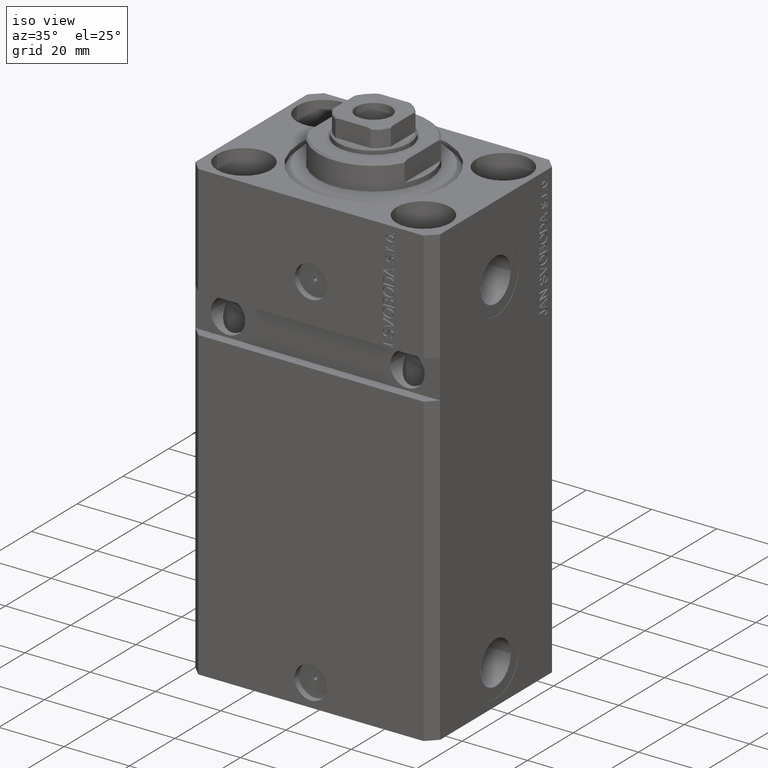
[diagram: clean part render]
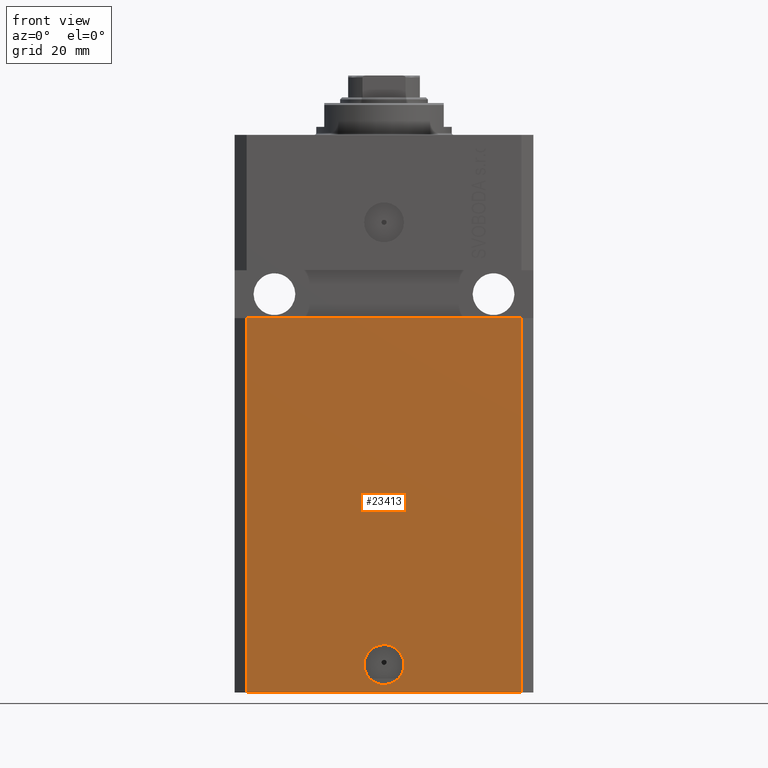
[diagram: tour spotlight — one face highlighted and labeled with its STEP entity id]
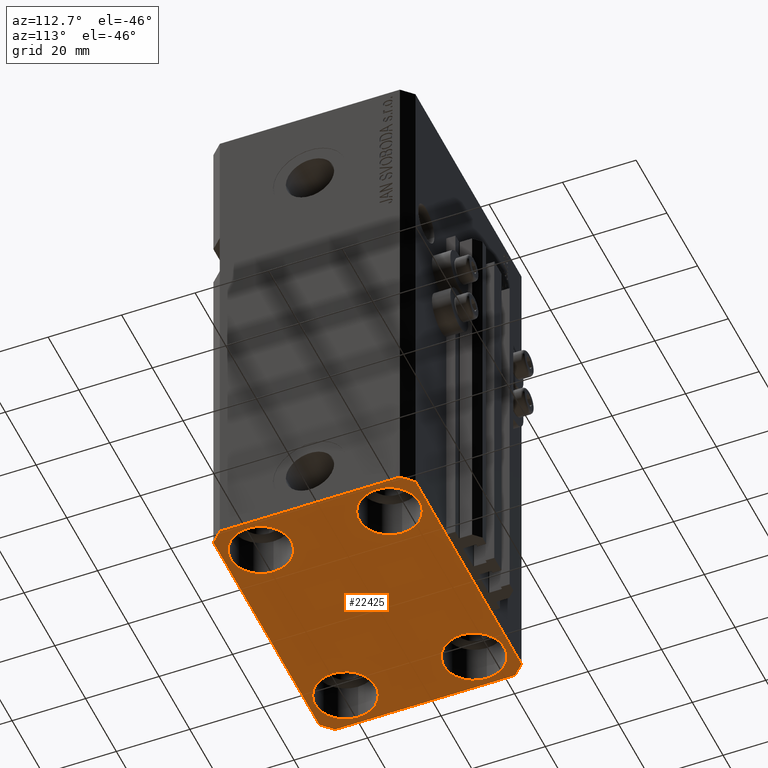
[diagram: tour spotlight — one face highlighted and labeled with its STEP entity id]
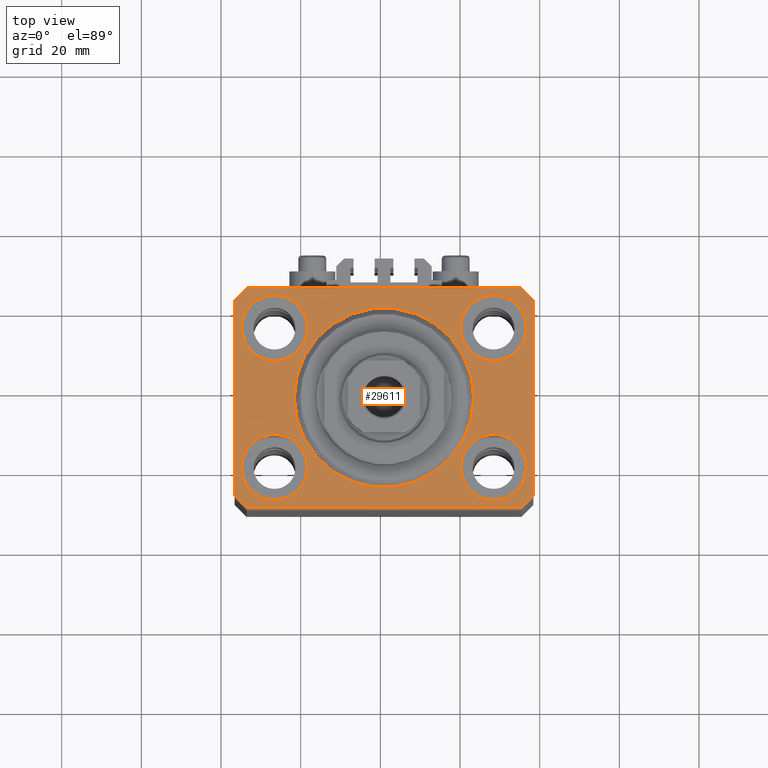
[diagram: tour spotlight — one face highlighted and labeled with its STEP entity id]
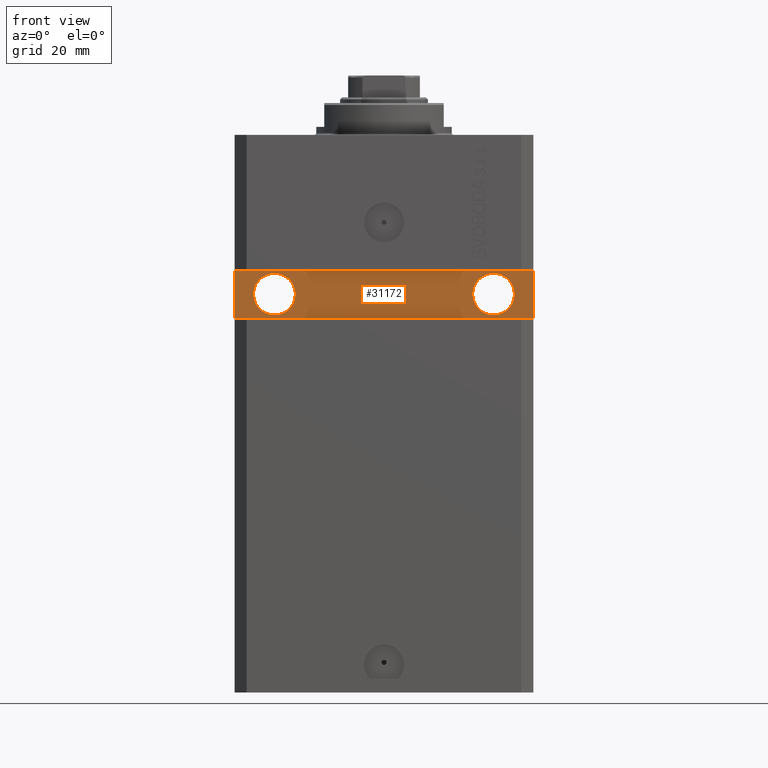
[diagram: tour spotlight — one face highlighted and labeled with its STEP entity id]
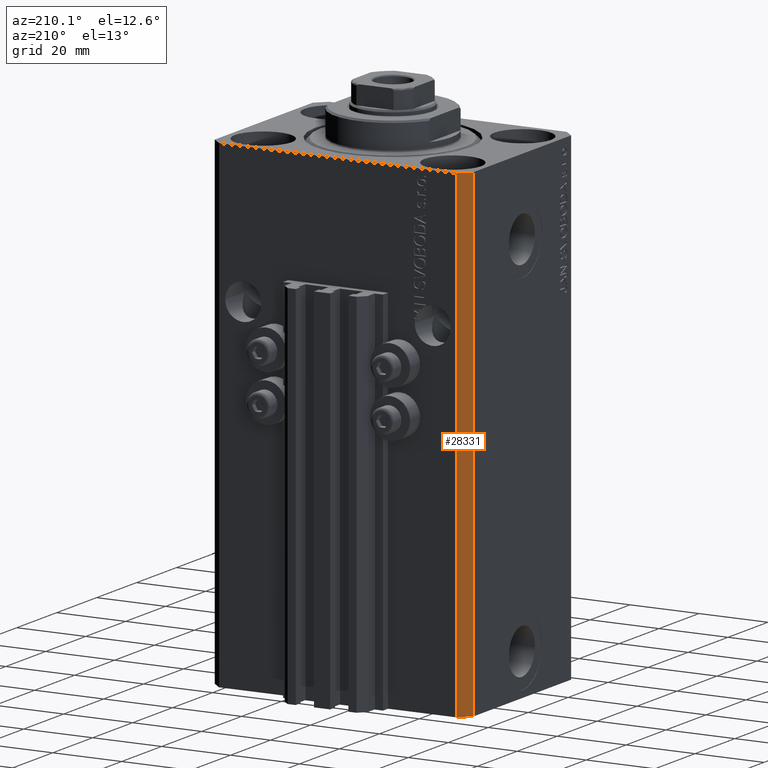
[diagram: tour spotlight — one face highlighted and labeled with its STEP entity id]
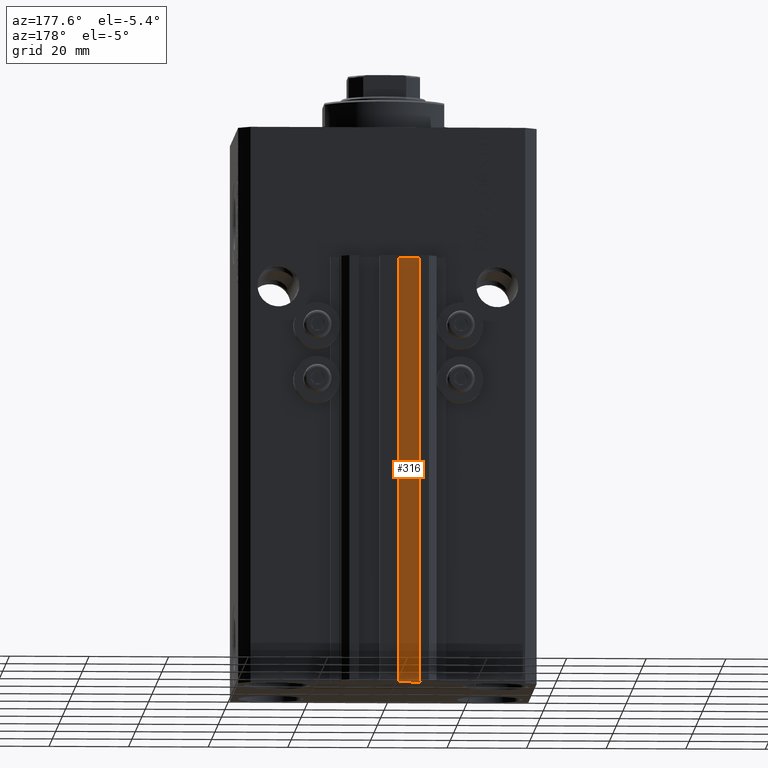
[diagram: tour spotlight — one face highlighted and labeled with its STEP entity id]
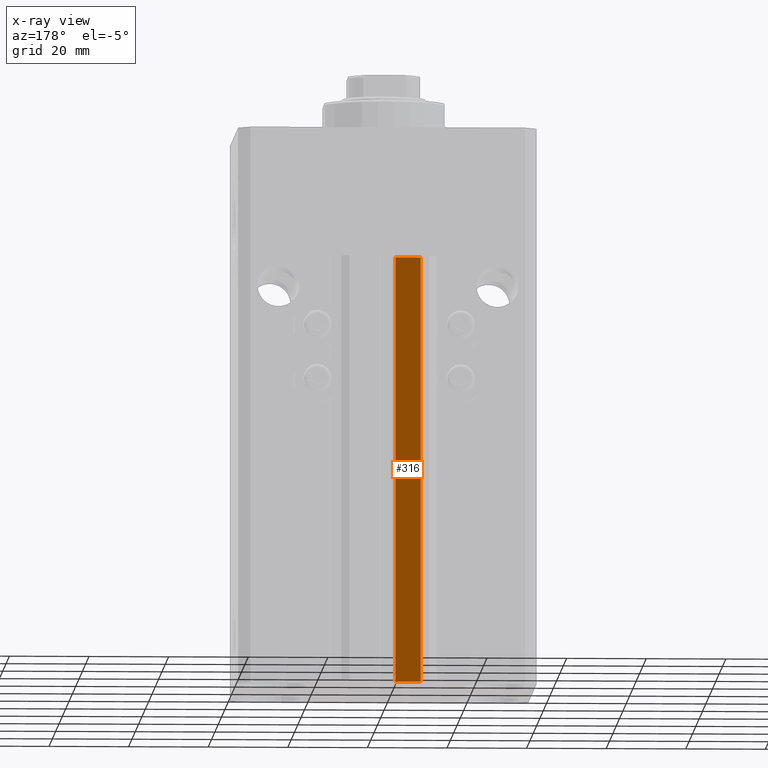
[diagram: x-ray of the same camera — body ghosted, this tour face saturated]
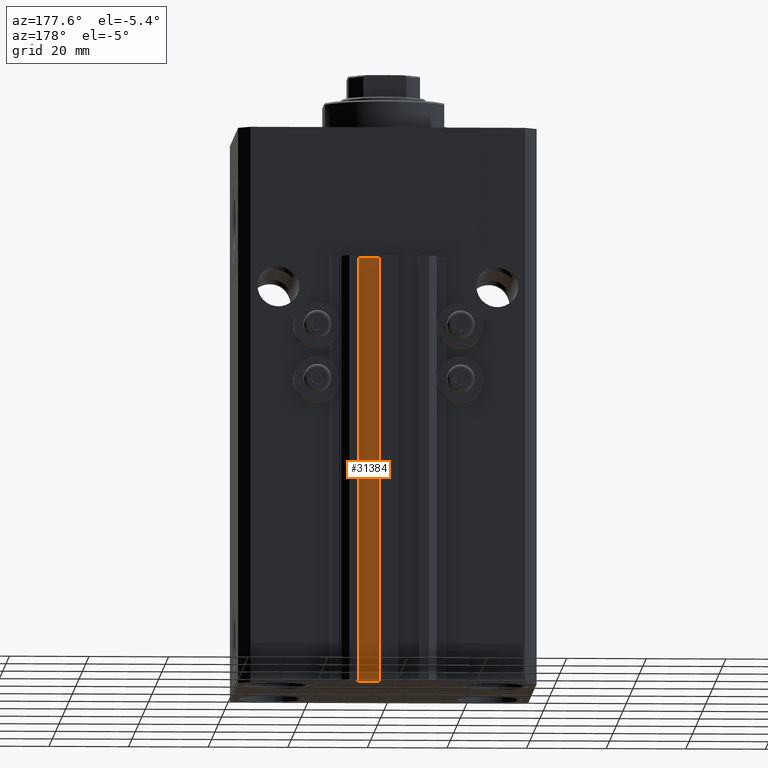
[diagram: tour spotlight — one face highlighted and labeled with its STEP entity id]
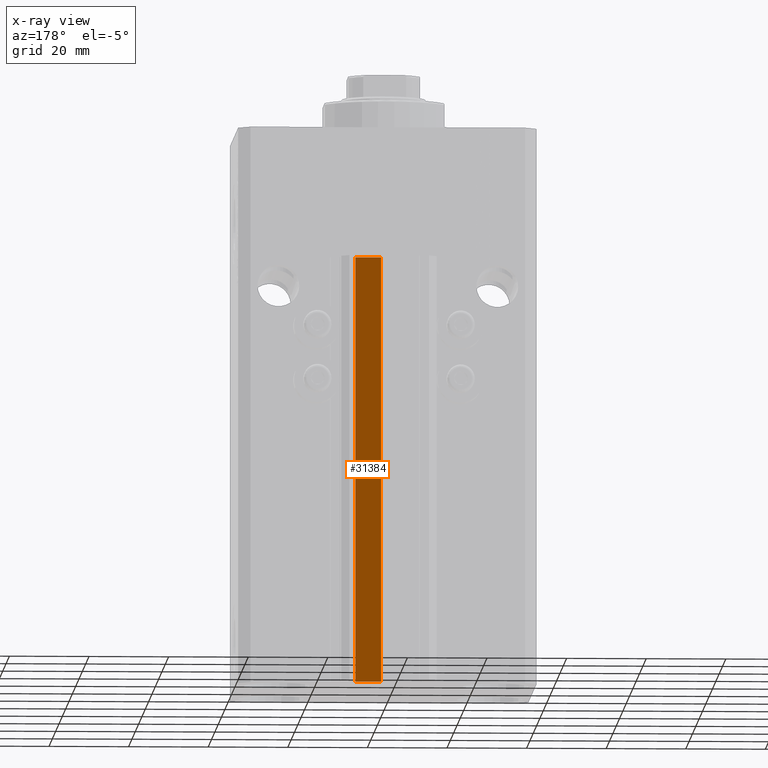
[diagram: x-ray of the same camera — body ghosted, this tour face saturated]
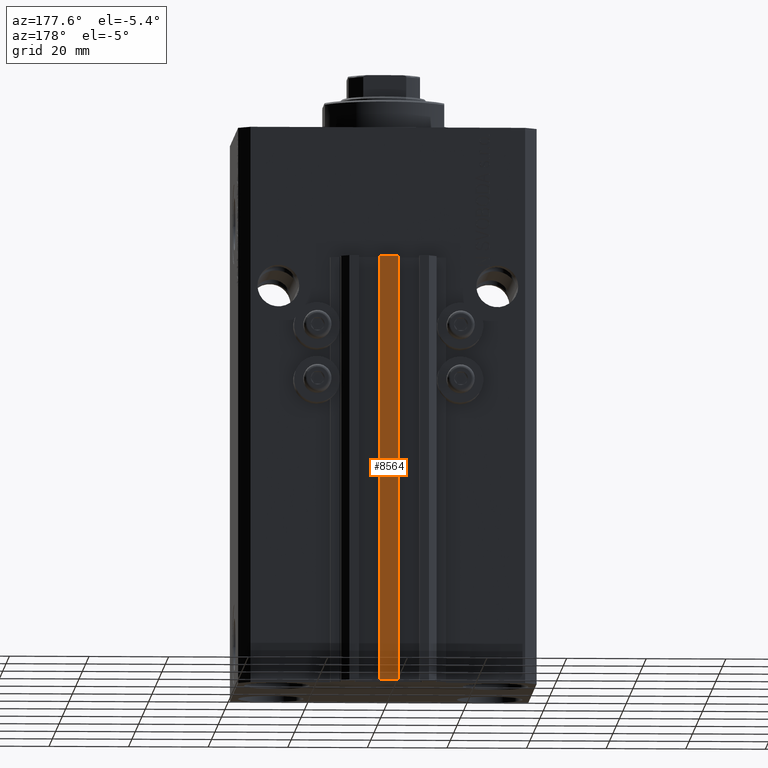
[diagram: tour spotlight — one face highlighted and labeled with its STEP entity id]
A machine part: a face-by-face anatomy tour. The part has 1080 B-rep faces; the first image is the clean iso view, then the 8 largest visible faces are spotlighted one at a time (largest first), each with its STEP entity span.

Face 1 — front view, entity #23413. In plain terms, the highlighted planar face has unit normal (0, -1, 0).
Definition (entity closure, byte-faithful):
#1524 = AXIS2_PLACEMENT_3D ( 'NONE', #9958, #24585, #38440 ) ;
#2670 = DIRECTION ( 'NONE',  ( 1.176083712526788232E-16, -1.000000000000000000, 0.000000000000000000 ) ) ;
#2763 = AXIS2_PLACEMENT_3D ( 'NONE', #6476, #2670, #25187 ) ;
#4005 = CARTESIAN_POINT ( 'NONE',  ( 34.49999999999999289, -27.49999999999999645, -140.0000000000000000 ) ) ;
#6476 = CARTESIAN_POINT ( 'NONE',  ( 0.000000000000000000, -27.49999999999999645, -133.0000000000000000 ) ) ;
#6776 = DIRECTION ( 'NONE',  ( 1.000000000000000000, 0.000000000000000000, 0.000000000000000000 ) ) ;
#6844 = EDGE_CURVE ( 'NONE', #19736, #15123, #44581, .T. ) ;
#8182 = CARTESIAN_POINT ( 'NONE',  ( 34.49999999999999289, -27.49999999999999645, -140.0000000000000000 ) ) ;
#9491 = CARTESIAN_POINT ( 'NONE',  ( -34.49999999999998579, -27.49999999999999645, -140.0000000000000000 ) ) ;
#9958 = CARTESIAN_POINT ( 'NONE',  ( 0.000000000000000000, -27.49999999999999645, -133.0000000000000000 ) ) ;
#11011 = VERTEX_POINT ( 'NONE', #31215 ) ;
#11185 = AXIS2_PLACEMENT_3D ( 'NONE', #16041, #27293, #24184 ) ;
#12691 = FACE_OUTER_BOUND ( 'NONE', #22361, .T. ) ;
#12722 = LINE ( 'NONE', #37605, #23693 ) ;
#13124 = EDGE_CURVE ( 'NONE', #36436, #19736, #28599, .T. ) ;
#13611 = VECTOR ( 'NONE', #25089, 1000.000000000000000 ) ;
#15123 = VERTEX_POINT ( 'NONE', #23352 ) ;
#16041 = CARTESIAN_POINT ( 'NONE',  ( -34.49999999999998579, -27.49999999999999645, -140.0000000000000000 ) ) ;
#16715 = ORIENTED_EDGE ( 'NONE', *, *, #6844, .T. ) ;
#17134 = VECTOR ( 'NONE', #33554, 1000.000000000000000 ) ;
#17197 = VECTOR ( 'NONE', #6776, 1000.000000000000000 ) ;
#19736 = VERTEX_POINT ( 'NONE', #4005 ) ;
#22361 = EDGE_LOOP ( 'NONE', ( #33493, #40130, #36865, #16715 ) ) ;
#23352 = CARTESIAN_POINT ( 'NONE',  ( 34.49999999999999289, -27.49999999999999289, -45.99999999999999289 ) ) ;
#23413 = ADVANCED_FACE ( 'NONE', ( #37104, #12691 ), #28005, .T. ) ;
#23430 = CIRCLE ( 'NONE', #2763, 5.000000000000006217 ) ;
#23693 = VECTOR ( 'NONE', #38552, 1000.000000000000000 ) ;
#24136 = CARTESIAN_POINT ( 'NONE',  ( -34.49999999999998579, -27.50000000000000000, -46.00000000000000000 ) ) ;
#24184 = DIRECTION ( 'NONE',  ( 0.000000000000000000, -0.000000000000000000, -1.000000000000000000 ) ) ;
#24585 = DIRECTION ( 'NONE',  ( 1.176083712526788232E-16, -1.000000000000000000, 0.000000000000000000 ) ) ;
#25089 = DIRECTION ( 'NONE',  ( 1.000000000000000000, 9.251858538542972814E-17, 9.251858538542972814E-17 ) ) ;
#25187 = DIRECTION ( 'NONE',  ( 1.000000000000000000, 0.000000000000000000, 0.000000000000000000 ) ) ;
#27073 = EDGE_CURVE ( 'NONE', #11011, #33739, #23430, .T. ) ;
#27293 = DIRECTION ( 'NONE',  ( 0.000000000000000000, -1.000000000000000000, 0.000000000000000000 ) ) ;
#27661 = CARTESIAN_POINT ( 'NONE',  ( -34.49999999999998579, -27.49999999999999645, -140.0000000000000000 ) ) ;
#28005 = PLANE ( 'NONE',  #11185 ) ;
#28599 = LINE ( 'NONE', #27661, #17197 ) ;
#29607 = EDGE_LOOP ( 'NONE', ( #35086, #44683 ) ) ;
#30009 = CARTESIAN_POINT ( 'NONE',  ( 5.000000000000006217, -27.49999999999999645, -133.0000000000000000 ) ) ;
#31215 = CARTESIAN_POINT ( 'NONE',  ( -5.000000000000006217, -27.49999999999999645, -133.0000000000000000 ) ) ;
#31338 = EDGE_CURVE ( 'NONE', #43798, #15123, #36071, .T. ) ;
#33493 = ORIENTED_EDGE ( 'NONE', *, *, #31338, .F. ) ;
#33554 = DIRECTION ( 'NONE',  ( 0.000000000000000000, 0.000000000000000000, 1.000000000000000000 ) ) ;
#33739 = VERTEX_POINT ( 'NONE', #30009 ) ;
#34774 = EDGE_CURVE ( 'NONE', #36436, #43798, #12722, .T. ) ;
#35086 = ORIENTED_EDGE ( 'NONE', *, *, #38674, .F. ) ;
#36071 = LINE ( 'NONE', #42320, #13611 ) ;
#36436 = VERTEX_POINT ( 'NONE', #9491 ) ;
#36865 = ORIENTED_EDGE ( 'NONE', *, *, #13124, .T. ) ;
#37104 = FACE_BOUND ( 'NONE', #29607, .T. ) ;
#37605 = CARTESIAN_POINT ( 'NONE',  ( -34.49999999999998579, -27.49999999999999645, -140.0000000000000000 ) ) ;
#38440 = DIRECTION ( 'NONE',  ( 1.000000000000000000, 0.000000000000000000, 0.000000000000000000 ) ) ;
#38552 = DIRECTION ( 'NONE',  ( 0.000000000000000000, 0.000000000000000000, 1.000000000000000000 ) ) ;
#38674 = EDGE_CURVE ( 'NONE', #33739, #11011, #43607, .T. ) ;
#40130 = ORIENTED_EDGE ( 'NONE', *, *, #34774, .F. ) ;
#42320 = CARTESIAN_POINT ( 'NONE',  ( -37.50000000000000000, -27.50000000000000000, -46.00000000000000000 ) ) ;
#43607 = CIRCLE ( 'NONE', #1524, 5.000000000000006217 ) ;
#43798 = VERTEX_POINT ( 'NONE', #24136 ) ;
#44581 = LINE ( 'NONE', #8182, #17134 ) ;
#44683 = ORIENTED_EDGE ( 'NONE', *, *, #27073, .F. ) ;

Face 2 — auxiliary view, entity #22425. In plain terms, the highlighted planar face has unit normal (0, 0, 1).
Definition (entity closure, byte-faithful):
#28 = DIRECTION ( 'NONE',  ( -0.7071067811865356934, 0.7071067811865594521, 0.000000000000000000 ) ) ;
#91 = CARTESIAN_POINT ( 'NONE',  ( 19.25000000000000000, 17.50000000000001066, -140.0000000000000000 ) ) ;
#156 = EDGE_CURVE ( 'NONE', #25096, #9344, #31413, .T. ) ;
#1357 = FACE_BOUND ( 'NONE', #32802, .T. ) ;
#1709 = VERTEX_POINT ( 'NONE', #14085 ) ;
#2157 = EDGE_CURVE ( 'NONE', #32370, #43280, #27669, .T. ) ;
#2202 = CARTESIAN_POINT ( 'NONE',  ( 27.49999999999999645, 17.50000000000001066, -140.0000000000000000 ) ) ;
#2228 = ORIENTED_EDGE ( 'NONE', *, *, #16589, .T. ) ;
#2236 = CARTESIAN_POINT ( 'NONE',  ( -27.50000000000000355, 17.50000000000000000, -140.0000000000000000 ) ) ;
#2352 = VERTEX_POINT ( 'NONE', #23224 ) ;
#2984 = ORIENTED_EDGE ( 'NONE', *, *, #5086, .T. ) ;
#3588 = EDGE_LOOP ( 'NONE', ( #4659, #2228 ) ) ;
#3941 = VERTEX_POINT ( 'NONE', #30050 ) ;
#4005 = CARTESIAN_POINT ( 'NONE',  ( 34.49999999999999289, -27.49999999999999645, -140.0000000000000000 ) ) ;
#4137 = CARTESIAN_POINT ( 'NONE',  ( -37.49999999999999289, 24.50000000000000000, -140.0000000000000000 ) ) ;
#4340 = CARTESIAN_POINT ( 'NONE',  ( 35.74999999999999289, 17.50000000000001066, -140.0000000000000000 ) ) ;
#4505 = ORIENTED_EDGE ( 'NONE', *, *, #24185, .F. ) ;
#4525 = EDGE_CURVE ( 'NONE', #25430, #1709, #7442, .T. ) ;
#4659 = ORIENTED_EDGE ( 'NONE', *, *, #2157, .T. ) ;
#4706 = FACE_BOUND ( 'NONE', #15096, .T. ) ;
#4750 = DIRECTION ( 'NONE',  ( -0.000000000000000000, -0.000000000000000000, 1.000000000000000000 ) ) ;
#5086 = EDGE_CURVE ( 'NONE', #16298, #38726, #34599, .T. ) ;
#5162 = FACE_BOUND ( 'NONE', #46767, .T. ) ;
#5395 = CARTESIAN_POINT ( 'NONE',  ( -19.25000000000000355, -17.50000000000000000, -140.0000000000000000 ) ) ;
#5567 = LINE ( 'NONE', #20203, #12596 ) ;
#5613 = EDGE_CURVE ( 'NONE', #38726, #16298, #16348, .T. ) ;
#5826 = EDGE_CURVE ( 'NONE', #3941, #9445, #17860, .T. ) ;
#5958 = DIRECTION ( 'NONE',  ( -0.000000000000000000, -0.000000000000000000, 1.000000000000000000 ) ) ;
#6776 = DIRECTION ( 'NONE',  ( 1.000000000000000000, 0.000000000000000000, 0.000000000000000000 ) ) ;
#7442 = LINE ( 'NONE', #15115, #32293 ) ;
#8387 = VECTOR ( 'NONE', #24926, 1000.000000000000000 ) ;
#9005 = DIRECTION ( 'NONE',  ( 1.000000000000000000, 0.000000000000000000, -0.000000000000000000 ) ) ;
#9344 = VERTEX_POINT ( 'NONE', #4340 ) ;
#9445 = VERTEX_POINT ( 'NONE', #12727 ) ;
#9491 = CARTESIAN_POINT ( 'NONE',  ( -34.49999999999998579, -27.49999999999999645, -140.0000000000000000 ) ) ;
#9887 = DIRECTION ( 'NONE',  ( 1.000000000000000000, 0.000000000000000000, 0.000000000000000000 ) ) ;
#10183 = AXIS2_PLACEMENT_3D ( 'NONE', #30347, #37998, #12642 ) ;
#10771 = AXIS2_PLACEMENT_3D ( 'NONE', #2202, #34753, #27599 ) ;
#11358 = VERTEX_POINT ( 'NONE', #45777 ) ;
#11690 = DIRECTION ( 'NONE',  ( -1.000000000000000000, 0.000000000000000000, 0.000000000000000000 ) ) ;
#12311 = DIRECTION ( 'NONE',  ( 0.000000000000000000, -1.000000000000000000, 0.000000000000000000 ) ) ;
#12459 = CARTESIAN_POINT ( 'NONE',  ( -27.50000000000000355, 17.50000000000000000, -140.0000000000000000 ) ) ;
#12596 = VECTOR ( 'NONE', #12311, 1000.000000000000000 ) ;
#12642 = DIRECTION ( 'NONE',  ( 1.000000000000000000, 0.000000000000000000, 0.000000000000000000 ) ) ;
#12727 = CARTESIAN_POINT ( 'NONE',  ( 35.75000000000000711, -17.50000000000000000, -140.0000000000000000 ) ) ;
#13124 = EDGE_CURVE ( 'NONE', #36436, #19736, #28599, .T. ) ;
#13855 = DIRECTION ( 'NONE',  ( -0.7071067811865471286, -0.7071067811865479058, 0.000000000000000000 ) ) ;
#13904 = CARTESIAN_POINT ( 'NONE',  ( -35.75000000000000711, 17.50000000000000000, -140.0000000000000000 ) ) ;
#14085 = CARTESIAN_POINT ( 'NONE',  ( 34.50000000000056843, 27.50000000000000000, -140.0000000000000000 ) ) ;
#14525 = VECTOR ( 'NONE', #43858, 1000.000000000000114 ) ;
#14600 = DIRECTION ( 'NONE',  ( 1.000000000000000000, 0.000000000000000000, 0.000000000000000000 ) ) ;
#15096 = EDGE_LOOP ( 'NONE', ( #43701, #32165 ) ) ;
#15115 = CARTESIAN_POINT ( 'NONE',  ( 37.50000000000051870, 24.49999999999995381, -140.0000000000000000 ) ) ;
#15349 = AXIS2_PLACEMENT_3D ( 'NONE', #18108, #43245, #39872 ) ;
#15853 = EDGE_CURVE ( 'NONE', #1709, #30409, #22478, .T. ) ;
#16151 = ORIENTED_EDGE ( 'NONE', *, *, #13124, .F. ) ;
#16298 = VERTEX_POINT ( 'NONE', #23538 ) ;
#16348 = CIRCLE ( 'NONE', #41552, 8.250000000000000000 ) ;
#16589 = EDGE_CURVE ( 'NONE', #43280, #32370, #36977, .T. ) ;
#17114 = AXIS2_PLACEMENT_3D ( 'NONE', #12459, #5958, #41415 ) ;
#17197 = VECTOR ( 'NONE', #6776, 1000.000000000000000 ) ;
#17232 = CARTESIAN_POINT ( 'NONE',  ( -37.49999999999999289, -24.50000000000000000, -140.0000000000000000 ) ) ;
#17860 = CIRCLE ( 'NONE', #35426, 8.250000000000000000 ) ;
#18108 = CARTESIAN_POINT ( 'NONE',  ( 27.50000000000000355, -17.50000000000000000, -140.0000000000000000 ) ) ;
#18767 = VECTOR ( 'NONE', #24191, 1000.000000000000000 ) ;
#18939 = ORIENTED_EDGE ( 'NONE', *, *, #36531, .T. ) ;
#19064 = EDGE_CURVE ( 'NONE', #23841, #11358, #5567, .T. ) ;
#19136 = DIRECTION ( 'NONE',  ( 1.000000000000000000, 0.000000000000000000, 0.000000000000000000 ) ) ;
#19736 = VERTEX_POINT ( 'NONE', #4005 ) ;
#19794 = FACE_BOUND ( 'NONE', #3588, .T. ) ;
#20203 = CARTESIAN_POINT ( 'NONE',  ( -37.49999999999999289, 24.50000000000000000, -140.0000000000000000 ) ) ;
#20851 = LINE ( 'NONE', #31840, #8387 ) ;
#21853 = VECTOR ( 'NONE', #13855, 1000.000000000000000 ) ;
#22425 = ADVANCED_FACE ( 'NONE', ( #1357, #5162, #4706, #19794, #45407 ), #41570, .F. ) ;
#22478 = LINE ( 'NONE', #32756, #46119 ) ;
#22780 = CARTESIAN_POINT ( 'NONE',  ( -27.50000000000000355, -17.50000000000000000, -140.0000000000000000 ) ) ;
#22928 = CARTESIAN_POINT ( 'NONE',  ( 37.50000000000051870, 24.49999999999995381, -140.0000000000000000 ) ) ;
#23224 = CARTESIAN_POINT ( 'NONE',  ( 37.49999999999999289, -24.50000000000000000, -140.0000000000000000 ) ) ;
#23538 = CARTESIAN_POINT ( 'NONE',  ( -35.75000000000000711, -17.50000000000000000, -140.0000000000000000 ) ) ;
#23841 = VERTEX_POINT ( 'NONE', #4137 ) ;
#23913 = ORIENTED_EDGE ( 'NONE', *, *, #19064, .F. ) ;
#24185 = EDGE_CURVE ( 'NONE', #11358, #36436, #38524, .T. ) ;
#24191 = DIRECTION ( 'NONE',  ( 0.7071067811865483499, -0.7071067811865466846, 0.000000000000000000 ) ) ;
#24678 = ORIENTED_EDGE ( 'NONE', *, *, #15853, .F. ) ;
#24926 = DIRECTION ( 'NONE',  ( 1.076236605503979380E-14, 1.000000000000000000, 0.000000000000000000 ) ) ;
#25096 = VERTEX_POINT ( 'NONE', #91 ) ;
#25399 = EDGE_CURVE ( 'NONE', #30409, #23841, #43294, .T. ) ;
#25430 = VERTEX_POINT ( 'NONE', #22928 ) ;
#25753 = ORIENTED_EDGE ( 'NONE', *, *, #5613, .T. ) ;
#26239 = CARTESIAN_POINT ( 'NONE',  ( -34.49999999999999289, 27.50000000000000000, -140.0000000000000000 ) ) ;
#26481 = AXIS2_PLACEMENT_3D ( 'NONE', #30323, #44935, #9005 ) ;
#26867 = ORIENTED_EDGE ( 'NONE', *, *, #45086, .F. ) ;
#27314 = AXIS2_PLACEMENT_3D ( 'NONE', #41141, #4750, #19136 ) ;
#27599 = DIRECTION ( 'NONE',  ( 1.000000000000000000, 0.000000000000000000, 0.000000000000000000 ) ) ;
#27661 = CARTESIAN_POINT ( 'NONE',  ( -34.49999999999998579, -27.49999999999999645, -140.0000000000000000 ) ) ;
#27669 = CIRCLE ( 'NONE', #43728, 8.250000000000000000 ) ;
#28110 = EDGE_CURVE ( 'NONE', #9344, #25096, #36415, .T. ) ;
#28554 = LINE ( 'NONE', #47219, #14525 ) ;
#28599 = LINE ( 'NONE', #27661, #17197 ) ;
#29869 = CIRCLE ( 'NONE', #15349, 8.250000000000000000 ) ;
#30050 = CARTESIAN_POINT ( 'NONE',  ( 19.25000000000000000, -17.50000000000000000, -140.0000000000000000 ) ) ;
#30177 = DIRECTION ( 'NONE',  ( -0.000000000000000000, -0.000000000000000000, 1.000000000000000000 ) ) ;
#30323 = CARTESIAN_POINT ( 'NONE',  ( 0.000000000000000000, 0.000000000000000000, -140.0000000000000000 ) ) ;
#30347 = CARTESIAN_POINT ( 'NONE',  ( -27.50000000000000355, -17.50000000000000000, -140.0000000000000000 ) ) ;
#30409 = VERTEX_POINT ( 'NONE', #26239 ) ;
#31378 = ORIENTED_EDGE ( 'NONE', *, *, #5826, .T. ) ;
#31413 = CIRCLE ( 'NONE', #10771, 8.249999999999992895 ) ;
#31840 = CARTESIAN_POINT ( 'NONE',  ( 37.49999999999999289, -24.50000000000000000, -140.0000000000000000 ) ) ;
#32165 = ORIENTED_EDGE ( 'NONE', *, *, #28110, .T. ) ;
#32293 = VECTOR ( 'NONE', #28, 1000.000000000000114 ) ;
#32370 = VERTEX_POINT ( 'NONE', #13904 ) ;
#32734 = CARTESIAN_POINT ( 'NONE',  ( -34.49999999999999289, 27.50000000000000000, -140.0000000000000000 ) ) ;
#32756 = CARTESIAN_POINT ( 'NONE',  ( 34.50000000000056843, 27.50000000000000000, -140.0000000000000000 ) ) ;
#32765 = DIRECTION ( 'NONE',  ( -0.000000000000000000, -0.000000000000000000, 1.000000000000000000 ) ) ;
#32802 = EDGE_LOOP ( 'NONE', ( #2984, #25753 ) ) ;
#33523 = DIRECTION ( 'NONE',  ( 1.000000000000000000, 0.000000000000000000, 0.000000000000000000 ) ) ;
#34599 = CIRCLE ( 'NONE', #10183, 8.250000000000000000 ) ;
#34753 = DIRECTION ( 'NONE',  ( -0.000000000000000000, -0.000000000000000000, 1.000000000000000000 ) ) ;
#34858 = EDGE_CURVE ( 'NONE', #2352, #25430, #20851, .T. ) ;
#35426 = AXIS2_PLACEMENT_3D ( 'NONE', #44732, #32765, #14600 ) ;
#36415 = CIRCLE ( 'NONE', #27314, 8.249999999999992895 ) ;
#36436 = VERTEX_POINT ( 'NONE', #9491 ) ;
#36531 = EDGE_CURVE ( 'NONE', #9445, #3941, #29869, .T. ) ;
#36977 = CIRCLE ( 'NONE', #17114, 8.250000000000000000 ) ;
#37447 = EDGE_LOOP ( 'NONE', ( #24678, #38677, #44966, #26867, #16151, #4505, #23913, #42688 ) ) ;
#37998 = DIRECTION ( 'NONE',  ( -0.000000000000000000, -0.000000000000000000, 1.000000000000000000 ) ) ;
#38524 = LINE ( 'NONE', #17232, #18767 ) ;
#38677 = ORIENTED_EDGE ( 'NONE', *, *, #4525, .F. ) ;
#38726 = VERTEX_POINT ( 'NONE', #5395 ) ;
#38854 = DIRECTION ( 'NONE',  ( -0.000000000000000000, -0.000000000000000000, 1.000000000000000000 ) ) ;
#39872 = DIRECTION ( 'NONE',  ( 1.000000000000000000, 0.000000000000000000, 0.000000000000000000 ) ) ;
#41141 = CARTESIAN_POINT ( 'NONE',  ( 27.49999999999999645, 17.50000000000001066, -140.0000000000000000 ) ) ;
#41415 = DIRECTION ( 'NONE',  ( 1.000000000000000000, 0.000000000000000000, 0.000000000000000000 ) ) ;
#41552 = AXIS2_PLACEMENT_3D ( 'NONE', #22780, #30177, #33523 ) ;
#41570 = PLANE ( 'NONE',  #26481 ) ;
#42249 = CARTESIAN_POINT ( 'NONE',  ( -19.25000000000000355, 17.50000000000000000, -140.0000000000000000 ) ) ;
#42688 = ORIENTED_EDGE ( 'NONE', *, *, #25399, .F. ) ;
#43245 = DIRECTION ( 'NONE',  ( -0.000000000000000000, -0.000000000000000000, 1.000000000000000000 ) ) ;
#43280 = VERTEX_POINT ( 'NONE', #42249 ) ;
#43294 = LINE ( 'NONE', #32734, #21853 ) ;
#43701 = ORIENTED_EDGE ( 'NONE', *, *, #156, .T. ) ;
#43728 = AXIS2_PLACEMENT_3D ( 'NONE', #2236, #38854, #9887 ) ;
#43858 = DIRECTION ( 'NONE',  ( 0.7071067811865474617, 0.7071067811865474617, 0.000000000000000000 ) ) ;
#44732 = CARTESIAN_POINT ( 'NONE',  ( 27.50000000000000355, -17.50000000000000000, -140.0000000000000000 ) ) ;
#44935 = DIRECTION ( 'NONE',  ( 0.000000000000000000, 0.000000000000000000, 1.000000000000000000 ) ) ;
#44966 = ORIENTED_EDGE ( 'NONE', *, *, #34858, .F. ) ;
#45086 = EDGE_CURVE ( 'NONE', #19736, #2352, #28554, .T. ) ;
#45407 = FACE_OUTER_BOUND ( 'NONE', #37447, .T. ) ;
#45777 = CARTESIAN_POINT ( 'NONE',  ( -37.49999999999999289, -24.50000000000000000, -140.0000000000000000 ) ) ;
#46119 = VECTOR ( 'NONE', #11690, 1000.000000000000000 ) ;
#46767 = EDGE_LOOP ( 'NONE', ( #31378, #18939 ) ) ;
#47219 = CARTESIAN_POINT ( 'NONE',  ( 34.49999999999999289, -27.49999999999999645, -140.0000000000000000 ) ) ;

Face 3 — top view, entity #29611. In plain terms, the highlighted planar face has unit normal (0, 0, 1).
Definition (entity closure, byte-faithful):
#434 = VERTEX_POINT ( 'NONE', #16294 ) ;
#730 = DIRECTION ( 'NONE',  ( 1.076236605503979380E-14, 1.000000000000000000, 0.000000000000000000 ) ) ;
#1569 = ORIENTED_EDGE ( 'NONE', *, *, #40651, .T. ) ;
#1736 = EDGE_CURVE ( 'NONE', #6403, #434, #38966, .T. ) ;
#2003 = EDGE_CURVE ( 'NONE', #434, #28099, #29097, .T. ) ;
#2893 = CARTESIAN_POINT ( 'NONE',  ( 37.50000000000051870, 24.49999999999995381, 0.000000000000000000 ) ) ;
#3002 = EDGE_LOOP ( 'NONE', ( #14313, #17613, #1569, #16484, #26508, #17251, #38357, #15487 ) ) ;
#3137 = DIRECTION ( 'NONE',  ( -0.7071067811865356934, 0.7071067811865594521, 0.000000000000000000 ) ) ;
#3849 = CIRCLE ( 'NONE', #27586, 8.250000000000000000 ) ;
#4046 = EDGE_CURVE ( 'NONE', #46339, #23371, #4775, .T. ) ;
#4460 = VERTEX_POINT ( 'NONE', #32579 ) ;
#4565 = DIRECTION ( 'NONE',  ( 1.000000000000000000, 0.000000000000000000, 0.000000000000000000 ) ) ;
#4587 = FACE_BOUND ( 'NONE', #45524, .T. ) ;
#4735 = EDGE_CURVE ( 'NONE', #4460, #6403, #16281, .T. ) ;
#4753 = CARTESIAN_POINT ( 'NONE',  ( 35.74999999999999289, 17.50000000000001066, 0.000000000000000000 ) ) ;
#4775 = CIRCLE ( 'NONE', #26198, 8.249999999999992895 ) ;
#5047 = FACE_OUTER_BOUND ( 'NONE', #3002, .T. ) ;
#5124 = DIRECTION ( 'NONE',  ( 1.000000000000000000, 0.000000000000000000, 0.000000000000000000 ) ) ;
#5243 = DIRECTION ( 'NONE',  ( 1.000000000000000000, 0.000000000000000000, 0.000000000000000000 ) ) ;
#5273 = PLANE ( 'NONE',  #20452 ) ;
#5618 = AXIS2_PLACEMENT_3D ( 'NONE', #27317, #16541, #4565 ) ;
#5833 = DIRECTION ( 'NONE',  ( 1.000000000000000000, 0.000000000000000000, 0.000000000000000000 ) ) ;
#6403 = VERTEX_POINT ( 'NONE', #33255 ) ;
#6440 = DIRECTION ( 'NONE',  ( 1.000000000000000000, 0.000000000000000000, 0.000000000000000000 ) ) ;
#7048 = DIRECTION ( 'NONE',  ( 0.7071067811865474617, 0.7071067811865474617, 0.000000000000000000 ) ) ;
#7522 = VERTEX_POINT ( 'NONE', #14809 ) ;
#7590 = DIRECTION ( 'NONE',  ( 0.000000000000000000, 0.000000000000000000, 1.000000000000000000 ) ) ;
#8955 = CARTESIAN_POINT ( 'NONE',  ( -34.49999999999999289, 27.50000000000000000, 0.000000000000000000 ) ) ;
#9103 = CIRCLE ( 'NONE', #23767, 8.250000000000000000 ) ;
#9397 = CARTESIAN_POINT ( 'NONE',  ( 27.50000000000000355, -17.50000000000000000, 0.000000000000000000 ) ) ;
#9749 = CARTESIAN_POINT ( 'NONE',  ( -22.50000000000000355, 2.755455298081544383E-15, 0.000000000000000000 ) ) ;
#10011 = DIRECTION ( 'NONE',  ( -1.000000000000000000, 0.000000000000000000, 0.000000000000000000 ) ) ;
#10054 = DIRECTION ( 'NONE',  ( 0.000000000000000000, 0.000000000000000000, 1.000000000000000000 ) ) ;
#10110 = ORIENTED_EDGE ( 'NONE', *, *, #4046, .F. ) ;
#10560 = LINE ( 'NONE', #11274, #12299 ) ;
#11270 = CARTESIAN_POINT ( 'NONE',  ( 19.25000000000000000, 17.50000000000001066, 0.000000000000000000 ) ) ;
#11274 = CARTESIAN_POINT ( 'NONE',  ( 37.49999999999999289, -24.50000000000000000, 0.000000000000000000 ) ) ;
#11287 = EDGE_CURVE ( 'NONE', #11857, #44865, #12591, .T. ) ;
#11857 = VERTEX_POINT ( 'NONE', #26817 ) ;
#11959 = CARTESIAN_POINT ( 'NONE',  ( 37.49999999999999289, -24.50000000000000000, 0.000000000000000000 ) ) ;
#12299 = VECTOR ( 'NONE', #730, 1000.000000000000000 ) ;
#12417 = VERTEX_POINT ( 'NONE', #33982 ) ;
#12496 = FACE_BOUND ( 'NONE', #21727, .T. ) ;
#12527 = AXIS2_PLACEMENT_3D ( 'NONE', #12932, #45973, #5243 ) ;
#12591 = CIRCLE ( 'NONE', #43918, 8.250000000000000000 ) ;
#12895 = CARTESIAN_POINT ( 'NONE',  ( 35.75000000000000711, -17.50000000000000000, 0.000000000000000000 ) ) ;
#12930 = CARTESIAN_POINT ( 'NONE',  ( -37.49999999999999289, -24.50000000000000000, 0.000000000000000000 ) ) ;
#12932 = CARTESIAN_POINT ( 'NONE',  ( -27.50000000000000355, -17.50000000000000000, 0.000000000000000000 ) ) ;
#13238 = DIRECTION ( 'NONE',  ( 0.000000000000000000, 0.000000000000000000, 1.000000000000000000 ) ) ;
#13288 = DIRECTION ( 'NONE',  ( 0.000000000000000000, 0.000000000000000000, 1.000000000000000000 ) ) ;
#13481 = CIRCLE ( 'NONE', #37182, 22.50000000000000355 ) ;
#13482 = VERTEX_POINT ( 'NONE', #29889 ) ;
#13612 = CARTESIAN_POINT ( 'NONE',  ( -34.49999999999998579, -27.49999999999999645, 0.000000000000000000 ) ) ;
#13795 = DIRECTION ( 'NONE',  ( 1.000000000000000000, 0.000000000000000000, 0.000000000000000000 ) ) ;
#14313 = ORIENTED_EDGE ( 'NONE', *, *, #25271, .T. ) ;
#14366 = AXIS2_PLACEMENT_3D ( 'NONE', #40384, #7590, #36793 ) ;
#14530 = CARTESIAN_POINT ( 'NONE',  ( -19.25000000000000355, -17.50000000000000000, 0.000000000000000000 ) ) ;
#14687 = VECTOR ( 'NONE', #42801, 1000.000000000000000 ) ;
#14778 = EDGE_LOOP ( 'NONE', ( #10110, #45471 ) ) ;
#14809 = CARTESIAN_POINT ( 'NONE',  ( -37.49999999999999289, 24.50000000000000000, 0.000000000000000000 ) ) ;
#14975 = ORIENTED_EDGE ( 'NONE', *, *, #26610, .F. ) ;
#15487 = ORIENTED_EDGE ( 'NONE', *, *, #39288, .T. ) ;
#15507 = CARTESIAN_POINT ( 'NONE',  ( -37.49999999999999289, 24.50000000000000000, 0.000000000000000000 ) ) ;
#15869 = CARTESIAN_POINT ( 'NONE',  ( -27.50000000000000355, 17.50000000000000000, 0.000000000000000000 ) ) ;
#16281 = LINE ( 'NONE', #12930, #46110 ) ;
#16294 = CARTESIAN_POINT ( 'NONE',  ( 34.49999999999999289, -27.49999999999999645, 0.000000000000000000 ) ) ;
#16484 = ORIENTED_EDGE ( 'NONE', *, *, #4735, .T. ) ;
#16541 = DIRECTION ( 'NONE',  ( 0.000000000000000000, 0.000000000000000000, 1.000000000000000000 ) ) ;
#16544 = EDGE_CURVE ( 'NONE', #24563, #21766, #20950, .T. ) ;
#16638 = DIRECTION ( 'NONE',  ( 0.000000000000000000, 0.000000000000000000, 1.000000000000000000 ) ) ;
#17251 = ORIENTED_EDGE ( 'NONE', *, *, #2003, .T. ) ;
#17476 = EDGE_CURVE ( 'NONE', #23371, #46339, #20184, .T. ) ;
#17613 = ORIENTED_EDGE ( 'NONE', *, *, #38891, .T. ) ;
#17696 = DIRECTION ( 'NONE',  ( 0.000000000000000000, 0.000000000000000000, 1.000000000000000000 ) ) ;
#18078 = ORIENTED_EDGE ( 'NONE', *, *, #37405, .F. ) ;
#18156 = DIRECTION ( 'NONE',  ( 1.000000000000000000, 0.000000000000000000, 0.000000000000000000 ) ) ;
#19201 = ORIENTED_EDGE ( 'NONE', *, *, #39937, .F. ) ;
#19679 = DIRECTION ( 'NONE',  ( 1.000000000000000000, 0.000000000000000000, -0.000000000000000000 ) ) ;
#20184 = CIRCLE ( 'NONE', #5618, 8.249999999999992895 ) ;
#20452 = AXIS2_PLACEMENT_3D ( 'NONE', #22811, #37384, #19679 ) ;
#20950 = CIRCLE ( 'NONE', #12527, 8.250000000000000000 ) ;
#21284 = CARTESIAN_POINT ( 'NONE',  ( -27.50000000000000355, 17.50000000000000000, 0.000000000000000000 ) ) ;
#21727 = EDGE_LOOP ( 'NONE', ( #31494, #14975 ) ) ;
#21766 = VERTEX_POINT ( 'NONE', #41897 ) ;
#22219 = CARTESIAN_POINT ( 'NONE',  ( 22.50000000000000355, 0.000000000000000000, 0.000000000000000000 ) ) ;
#22811 = CARTESIAN_POINT ( 'NONE',  ( 0.000000000000000000, 0.000000000000000000, 0.000000000000000000 ) ) ;
#23371 = VERTEX_POINT ( 'NONE', #11270 ) ;
#23767 = AXIS2_PLACEMENT_3D ( 'NONE', #39256, #10054, #6440 ) ;
#24233 = ORIENTED_EDGE ( 'NONE', *, *, #16544, .F. ) ;
#24563 = VERTEX_POINT ( 'NONE', #14530 ) ;
#24578 = CARTESIAN_POINT ( 'NONE',  ( 27.50000000000000355, -17.50000000000000000, 0.000000000000000000 ) ) ;
#25271 = EDGE_CURVE ( 'NONE', #12417, #45109, #28211, .T. ) ;
#26053 = LINE ( 'NONE', #15507, #38287 ) ;
#26198 = AXIS2_PLACEMENT_3D ( 'NONE', #38875, #13288, #5124 ) ;
#26508 = ORIENTED_EDGE ( 'NONE', *, *, #1736, .T. ) ;
#26610 = EDGE_CURVE ( 'NONE', #43867, #35249, #13481, .T. ) ;
#26794 = CARTESIAN_POINT ( 'NONE',  ( 19.25000000000000000, -17.50000000000000000, 0.000000000000000000 ) ) ;
#26817 = CARTESIAN_POINT ( 'NONE',  ( -35.75000000000000711, 17.50000000000000000, 0.000000000000000000 ) ) ;
#27317 = CARTESIAN_POINT ( 'NONE',  ( 27.49999999999999645, 17.50000000000001066, 0.000000000000000000 ) ) ;
#27586 = AXIS2_PLACEMENT_3D ( 'NONE', #24578, #46590, #13795 ) ;
#27643 = LINE ( 'NONE', #8955, #31358 ) ;
#28099 = VERTEX_POINT ( 'NONE', #11959 ) ;
#28101 = CIRCLE ( 'NONE', #14366, 22.50000000000000355 ) ;
#28211 = LINE ( 'NONE', #42808, #31772 ) ;
#28315 = CARTESIAN_POINT ( 'NONE',  ( -34.49999999999999289, 27.50000000000000000, 0.000000000000000000 ) ) ;
#28848 = EDGE_LOOP ( 'NONE', ( #39779, #19201 ) ) ;
#29097 = LINE ( 'NONE', #47290, #42941 ) ;
#29367 = EDGE_CURVE ( 'NONE', #35249, #43867, #28101, .T. ) ;
#29611 = ADVANCED_FACE ( 'NONE', ( #4587, #37851, #40977, #34257, #12496, #5047 ), #5273, .T. ) ;
#29864 = CIRCLE ( 'NONE', #30592, 8.250000000000000000 ) ;
#29889 = CARTESIAN_POINT ( 'NONE',  ( 37.50000000000051870, 24.49999999999995381, 0.000000000000000000 ) ) ;
#30450 = DIRECTION ( 'NONE',  ( 1.000000000000000000, 0.000000000000000000, 0.000000000000000000 ) ) ;
#30592 = AXIS2_PLACEMENT_3D ( 'NONE', #21284, #17696, #18156 ) ;
#31279 = AXIS2_PLACEMENT_3D ( 'NONE', #9397, #13238, #31417 ) ;
#31358 = VECTOR ( 'NONE', #31685, 1000.000000000000000 ) ;
#31417 = DIRECTION ( 'NONE',  ( 1.000000000000000000, 0.000000000000000000, 0.000000000000000000 ) ) ;
#31494 = ORIENTED_EDGE ( 'NONE', *, *, #29367, .F. ) ;
#31685 = DIRECTION ( 'NONE',  ( -0.7071067811865471286, -0.7071067811865479058, 0.000000000000000000 ) ) ;
#31772 = VECTOR ( 'NONE', #10011, 1000.000000000000000 ) ;
#32579 = CARTESIAN_POINT ( 'NONE',  ( -37.49999999999999289, -24.50000000000000000, 0.000000000000000000 ) ) ;
#32590 = VERTEX_POINT ( 'NONE', #26794 ) ;
#32637 = VERTEX_POINT ( 'NONE', #12895 ) ;
#33255 = CARTESIAN_POINT ( 'NONE',  ( -34.49999999999998579, -27.49999999999999645, 0.000000000000000000 ) ) ;
#33626 = ORIENTED_EDGE ( 'NONE', *, *, #11287, .F. ) ;
#33644 = VECTOR ( 'NONE', #3137, 1000.000000000000114 ) ;
#33679 = DIRECTION ( 'NONE',  ( 0.000000000000000000, -1.000000000000000000, 0.000000000000000000 ) ) ;
#33713 = EDGE_LOOP ( 'NONE', ( #39773, #33626 ) ) ;
#33830 = CARTESIAN_POINT ( 'NONE',  ( -19.25000000000000355, 17.50000000000000000, 0.000000000000000000 ) ) ;
#33982 = CARTESIAN_POINT ( 'NONE',  ( 34.50000000000056843, 27.50000000000000000, 0.000000000000000000 ) ) ;
#34257 = FACE_BOUND ( 'NONE', #33713, .T. ) ;
#34928 = DIRECTION ( 'NONE',  ( 0.7071067811865483499, -0.7071067811865466846, 0.000000000000000000 ) ) ;
#35249 = VERTEX_POINT ( 'NONE', #22219 ) ;
#36596 = CIRCLE ( 'NONE', #31279, 8.250000000000000000 ) ;
#36793 = DIRECTION ( 'NONE',  ( 1.000000000000000000, 0.000000000000000000, 0.000000000000000000 ) ) ;
#37182 = AXIS2_PLACEMENT_3D ( 'NONE', #38874, #16638, #5833 ) ;
#37384 = DIRECTION ( 'NONE',  ( 0.000000000000000000, 0.000000000000000000, 1.000000000000000000 ) ) ;
#37405 = EDGE_CURVE ( 'NONE', #21766, #24563, #9103, .T. ) ;
#37851 = FACE_BOUND ( 'NONE', #28848, .T. ) ;
#38287 = VECTOR ( 'NONE', #33679, 1000.000000000000000 ) ;
#38357 = ORIENTED_EDGE ( 'NONE', *, *, #41438, .T. ) ;
#38874 = CARTESIAN_POINT ( 'NONE',  ( 0.000000000000000000, 0.000000000000000000, 0.000000000000000000 ) ) ;
#38875 = CARTESIAN_POINT ( 'NONE',  ( 27.49999999999999645, 17.50000000000001066, 0.000000000000000000 ) ) ;
#38891 = EDGE_CURVE ( 'NONE', #45109, #7522, #27643, .T. ) ;
#38966 = LINE ( 'NONE', #13612, #14687 ) ;
#39256 = CARTESIAN_POINT ( 'NONE',  ( -27.50000000000000355, -17.50000000000000000, 0.000000000000000000 ) ) ;
#39288 = EDGE_CURVE ( 'NONE', #13482, #12417, #42640, .T. ) ;
#39773 = ORIENTED_EDGE ( 'NONE', *, *, #40478, .F. ) ;
#39779 = ORIENTED_EDGE ( 'NONE', *, *, #44421, .F. ) ;
#39937 = EDGE_CURVE ( 'NONE', #32590, #32637, #3849, .T. ) ;
#40384 = CARTESIAN_POINT ( 'NONE',  ( 0.000000000000000000, 0.000000000000000000, 0.000000000000000000 ) ) ;
#40478 = EDGE_CURVE ( 'NONE', #44865, #11857, #29864, .T. ) ;
#40651 = EDGE_CURVE ( 'NONE', #7522, #4460, #26053, .T. ) ;
#40977 = FACE_BOUND ( 'NONE', #14778, .T. ) ;
#41438 = EDGE_CURVE ( 'NONE', #28099, #13482, #10560, .T. ) ;
#41897 = CARTESIAN_POINT ( 'NONE',  ( -35.75000000000000711, -17.50000000000000000, 0.000000000000000000 ) ) ;
#42640 = LINE ( 'NONE', #2893, #33644 ) ;
#42801 = DIRECTION ( 'NONE',  ( 1.000000000000000000, 0.000000000000000000, 0.000000000000000000 ) ) ;
#42808 = CARTESIAN_POINT ( 'NONE',  ( 34.50000000000056843, 27.50000000000000000, 0.000000000000000000 ) ) ;
#42941 = VECTOR ( 'NONE', #7048, 1000.000000000000114 ) ;
#43867 = VERTEX_POINT ( 'NONE', #9749 ) ;
#43918 = AXIS2_PLACEMENT_3D ( 'NONE', #15869, #44834, #30450 ) ;
#44421 = EDGE_CURVE ( 'NONE', #32637, #32590, #36596, .T. ) ;
#44834 = DIRECTION ( 'NONE',  ( 0.000000000000000000, 0.000000000000000000, 1.000000000000000000 ) ) ;
#44865 = VERTEX_POINT ( 'NONE', #33830 ) ;
#45109 = VERTEX_POINT ( 'NONE', #28315 ) ;
#45471 = ORIENTED_EDGE ( 'NONE', *, *, #17476, .F. ) ;
#45524 = EDGE_LOOP ( 'NONE', ( #24233, #18078 ) ) ;
#45973 = DIRECTION ( 'NONE',  ( 0.000000000000000000, 0.000000000000000000, 1.000000000000000000 ) ) ;
#46110 = VECTOR ( 'NONE', #34928, 1000.000000000000000 ) ;
#46339 = VERTEX_POINT ( 'NONE', #4753 ) ;
#46590 = DIRECTION ( 'NONE',  ( 0.000000000000000000, 0.000000000000000000, 1.000000000000000000 ) ) ;
#47290 = CARTESIAN_POINT ( 'NONE',  ( 34.49999999999999289, -27.49999999999999645, 0.000000000000000000 ) ) ;

Face 4 — front view, entity #31172. In plain terms, the highlighted planar face has unit normal (0, -1, 0).
Definition (entity closure, byte-faithful):
#274 = AXIS2_PLACEMENT_3D ( 'NONE', #35651, #28481, #6193 ) ;
#402 = ORIENTED_EDGE ( 'NONE', *, *, #18813, .F. ) ;
#865 = ORIENTED_EDGE ( 'NONE', *, *, #16764, .F. ) ;
#1030 = CARTESIAN_POINT ( 'NONE',  ( 32.75000000000000000, -24.49999999999999289, -40.00000000000000000 ) ) ;
#1930 = ORIENTED_EDGE ( 'NONE', *, *, #43258, .T. ) ;
#2567 = CIRCLE ( 'NONE', #3324, 5.249999999999997335 ) ;
#2850 = EDGE_CURVE ( 'NONE', #6811, #31181, #37221, .T. ) ;
#3324 = AXIS2_PLACEMENT_3D ( 'NONE', #42901, #13943, #21597 ) ;
#4152 = EDGE_CURVE ( 'NONE', #31181, #25705, #14462, .T. ) ;
#4329 = FACE_BOUND ( 'NONE', #10466, .T. ) ;
#4451 = ORIENTED_EDGE ( 'NONE', *, *, #2850, .T. ) ;
#4482 = VECTOR ( 'NONE', #6079, 1000.000000000000000 ) ;
#4743 = CARTESIAN_POINT ( 'NONE',  ( 27.50000000000000711, -24.49999999999999289, -40.00000000000000000 ) ) ;
#5511 = ORIENTED_EDGE ( 'NONE', *, *, #14207, .F. ) ;
#6079 = DIRECTION ( 'NONE',  ( 0.000000000000000000, 0.000000000000000000, 1.000000000000000000 ) ) ;
#6193 = DIRECTION ( 'NONE',  ( 1.000000000000000000, 0.000000000000000000, 0.000000000000000000 ) ) ;
#6811 = VERTEX_POINT ( 'NONE', #17803 ) ;
#7542 = DIRECTION ( 'NONE',  ( -1.000000000000000000, -9.251858538542972814E-17, -9.251858538542972814E-17 ) ) ;
#9351 = DIRECTION ( 'NONE',  ( 1.000000000000000000, 9.251858538542972814E-17, 9.251858538542972814E-17 ) ) ;
#10466 = EDGE_LOOP ( 'NONE', ( #865, #402 ) ) ;
#10669 = CARTESIAN_POINT ( 'NONE',  ( 37.49999999999999289, -24.49999999999999289, -33.99999999999999289 ) ) ;
#11873 = AXIS2_PLACEMENT_3D ( 'NONE', #40330, #36738, #12088 ) ;
#11977 = ORIENTED_EDGE ( 'NONE', *, *, #16393, .F. ) ;
#12088 = DIRECTION ( 'NONE',  ( 1.000000000000000000, 0.000000000000000000, 0.000000000000000000 ) ) ;
#13943 = DIRECTION ( 'NONE',  ( 1.101411730780568590E-16, -1.000000000000000000, 0.000000000000000000 ) ) ;
#14039 = CIRCLE ( 'NONE', #274, 5.249999999999994671 ) ;
#14164 = VERTEX_POINT ( 'NONE', #24701 ) ;
#14207 = EDGE_CURVE ( 'NONE', #14164, #23791, #32487, .T. ) ;
#14462 = LINE ( 'NONE', #20949, #23157 ) ;
#16234 = VERTEX_POINT ( 'NONE', #1030 ) ;
#16393 = EDGE_CURVE ( 'NONE', #23791, #14164, #2567, .T. ) ;
#16764 = EDGE_CURVE ( 'NONE', #16234, #22384, #14039, .T. ) ;
#17334 = VERTEX_POINT ( 'NONE', #46514 ) ;
#17803 = CARTESIAN_POINT ( 'NONE',  ( 37.49999999999999289, -24.49999999999999289, -33.99999999999999289 ) ) ;
#17820 = CARTESIAN_POINT ( 'NONE',  ( -22.24999999999999645, -24.50000000000000000, -40.00000000000000711 ) ) ;
#17955 = ORIENTED_EDGE ( 'NONE', *, *, #18417, .T. ) ;
#18417 = EDGE_CURVE ( 'NONE', #25705, #17334, #45748, .T. ) ;
#18813 = EDGE_CURVE ( 'NONE', #22384, #16234, #47013, .T. ) ;
#19365 = DIRECTION ( 'NONE',  ( 1.000000000000000000, 0.000000000000000000, 0.000000000000000000 ) ) ;
#20076 = DIRECTION ( 'NONE',  ( 1.171720209325604191E-16, -1.000000000000000000, 0.000000000000000000 ) ) ;
#20949 = CARTESIAN_POINT ( 'NONE',  ( -37.50000000000000000, -24.50000000000000000, -34.00000000000000000 ) ) ;
#21597 = DIRECTION ( 'NONE',  ( 1.000000000000000000, 0.000000000000000000, 0.000000000000000000 ) ) ;
#21888 = DIRECTION ( 'NONE',  ( 0.000000000000000000, 0.000000000000000000, -1.000000000000000000 ) ) ;
#22384 = VERTEX_POINT ( 'NONE', #22675 ) ;
#22675 = CARTESIAN_POINT ( 'NONE',  ( 22.25000000000001421, -24.49999999999999289, -40.00000000000000000 ) ) ;
#23157 = VECTOR ( 'NONE', #21888, 1000.000000000000000 ) ;
#23304 = VECTOR ( 'NONE', #9351, 1000.000000000000000 ) ;
#23664 = DIRECTION ( 'NONE',  ( 9.251858538542972814E-17, -1.000000000000000000, 0.000000000000000000 ) ) ;
#23791 = VERTEX_POINT ( 'NONE', #17820 ) ;
#23879 = VECTOR ( 'NONE', #7542, 1000.000000000000000 ) ;
#23904 = DIRECTION ( 'NONE',  ( 1.000000000000000000, 9.251858538542972814E-17, 0.000000000000000000 ) ) ;
#24701 = CARTESIAN_POINT ( 'NONE',  ( -32.74999999999999289, -24.50000000000000000, -40.00000000000000711 ) ) ;
#25705 = VERTEX_POINT ( 'NONE', #40572 ) ;
#28481 = DIRECTION ( 'NONE',  ( 1.171720209325604191E-16, -1.000000000000000000, 0.000000000000000000 ) ) ;
#29952 = FACE_BOUND ( 'NONE', #32838, .T. ) ;
#30644 = ORIENTED_EDGE ( 'NONE', *, *, #4152, .T. ) ;
#31172 = ADVANCED_FACE ( 'NONE', ( #4329, #29952, #40480 ), #42081, .T. ) ;
#31181 = VERTEX_POINT ( 'NONE', #38236 ) ;
#31183 = AXIS2_PLACEMENT_3D ( 'NONE', #45920, #23664, #23904 ) ;
#32487 = CIRCLE ( 'NONE', #11873, 5.249999999999997335 ) ;
#32838 = EDGE_LOOP ( 'NONE', ( #11977, #5511 ) ) ;
#35651 = CARTESIAN_POINT ( 'NONE',  ( 27.50000000000000711, -24.49999999999999289, -40.00000000000000000 ) ) ;
#36738 = DIRECTION ( 'NONE',  ( 1.101411730780568590E-16, -1.000000000000000000, 0.000000000000000000 ) ) ;
#37221 = LINE ( 'NONE', #10669, #23879 ) ;
#38236 = CARTESIAN_POINT ( 'NONE',  ( -37.50000000000000000, -24.50000000000000000, -34.00000000000000000 ) ) ;
#38273 = EDGE_LOOP ( 'NONE', ( #17955, #1930, #4451, #30644 ) ) ;
#40330 = CARTESIAN_POINT ( 'NONE',  ( -27.49999999999999289, -24.50000000000000000, -40.00000000000000711 ) ) ;
#40480 = FACE_OUTER_BOUND ( 'NONE', #38273, .T. ) ;
#40572 = CARTESIAN_POINT ( 'NONE',  ( -37.50000000000000000, -24.50000000000000000, -46.00000000000000000 ) ) ;
#42081 = PLANE ( 'NONE',  #31183 ) ;
#42901 = CARTESIAN_POINT ( 'NONE',  ( -27.49999999999999289, -24.50000000000000000, -40.00000000000000711 ) ) ;
#43258 = EDGE_CURVE ( 'NONE', #17334, #6811, #45620, .T. ) ;
#45269 = CARTESIAN_POINT ( 'NONE',  ( -37.50000000000000000, -24.50000000000000000, -46.00000000000000000 ) ) ;
#45620 = LINE ( 'NONE', #46085, #4482 ) ;
#45748 = LINE ( 'NONE', #45269, #23304 ) ;
#45920 = CARTESIAN_POINT ( 'NONE',  ( 2.191435984341280931E-15, -24.49999999999999645, 0.000000000000000000 ) ) ;
#46085 = CARTESIAN_POINT ( 'NONE',  ( 37.49999999999999289, -24.49999999999999289, -45.99999999999999289 ) ) ;
#46514 = CARTESIAN_POINT ( 'NONE',  ( 37.49999999999999289, -24.49999999999999289, -45.99999999999999289 ) ) ;
#46982 = AXIS2_PLACEMENT_3D ( 'NONE', #4743, #20076, #19365 ) ;
#47013 = CIRCLE ( 'NONE', #46982, 5.249999999999994671 ) ;

Face 5 — auxiliary view, entity #28331. In plain terms, the highlighted planar face has unit normal (-0.7071, 0.7071, 0).
Definition (entity closure, byte-faithful):
#814 = ORIENTED_EDGE ( 'NONE', *, *, #15474, .T. ) ;
#2557 = DIRECTION ( 'NONE',  ( 0.000000000000000000, 0.000000000000000000, 1.000000000000000000 ) ) ;
#2946 = EDGE_LOOP ( 'NONE', ( #46924, #8363, #41026, #814 ) ) ;
#4137 = CARTESIAN_POINT ( 'NONE',  ( -37.49999999999999289, 24.50000000000000000, -140.0000000000000000 ) ) ;
#6565 = CARTESIAN_POINT ( 'NONE',  ( -34.49999999999999289, 27.50000000000000000, -140.0000000000000000 ) ) ;
#7327 = LINE ( 'NONE', #35343, #13527 ) ;
#7522 = VERTEX_POINT ( 'NONE', #14809 ) ;
#8363 = ORIENTED_EDGE ( 'NONE', *, *, #24619, .F. ) ;
#8955 = CARTESIAN_POINT ( 'NONE',  ( -34.49999999999999289, 27.50000000000000000, 0.000000000000000000 ) ) ;
#10088 = DIRECTION ( 'NONE',  ( 0.000000000000000000, 0.000000000000000000, 1.000000000000000000 ) ) ;
#10800 = LINE ( 'NONE', #42892, #29309 ) ;
#13313 = FACE_OUTER_BOUND ( 'NONE', #2946, .T. ) ;
#13527 = VECTOR ( 'NONE', #2557, 1000.000000000000000 ) ;
#13855 = DIRECTION ( 'NONE',  ( -0.7071067811865471286, -0.7071067811865479058, 0.000000000000000000 ) ) ;
#14809 = CARTESIAN_POINT ( 'NONE',  ( -37.49999999999999289, 24.50000000000000000, 0.000000000000000000 ) ) ;
#15474 = EDGE_CURVE ( 'NONE', #23841, #7522, #10800, .T. ) ;
#18893 = AXIS2_PLACEMENT_3D ( 'NONE', #6565, #46816, #39610 ) ;
#21853 = VECTOR ( 'NONE', #13855, 1000.000000000000000 ) ;
#23841 = VERTEX_POINT ( 'NONE', #4137 ) ;
#24619 = EDGE_CURVE ( 'NONE', #30409, #45109, #7327, .T. ) ;
#25399 = EDGE_CURVE ( 'NONE', #30409, #23841, #43294, .T. ) ;
#26239 = CARTESIAN_POINT ( 'NONE',  ( -34.49999999999999289, 27.50000000000000000, -140.0000000000000000 ) ) ;
#27643 = LINE ( 'NONE', #8955, #31358 ) ;
#28315 = CARTESIAN_POINT ( 'NONE',  ( -34.49999999999999289, 27.50000000000000000, 0.000000000000000000 ) ) ;
#28331 = ADVANCED_FACE ( 'NONE', ( #13313 ), #35545, .T. ) ;
#29309 = VECTOR ( 'NONE', #10088, 1000.000000000000000 ) ;
#30409 = VERTEX_POINT ( 'NONE', #26239 ) ;
#31358 = VECTOR ( 'NONE', #31685, 1000.000000000000000 ) ;
#31685 = DIRECTION ( 'NONE',  ( -0.7071067811865471286, -0.7071067811865479058, 0.000000000000000000 ) ) ;
#32734 = CARTESIAN_POINT ( 'NONE',  ( -34.49999999999999289, 27.50000000000000000, -140.0000000000000000 ) ) ;
#35343 = CARTESIAN_POINT ( 'NONE',  ( -34.49999999999999289, 27.50000000000000000, -140.0000000000000000 ) ) ;
#35545 = PLANE ( 'NONE',  #18893 ) ;
#38891 = EDGE_CURVE ( 'NONE', #45109, #7522, #27643, .T. ) ;
#39610 = DIRECTION ( 'NONE',  ( -0.7071067811865471286, -0.7071067811865479058, 0.000000000000000000 ) ) ;
#41026 = ORIENTED_EDGE ( 'NONE', *, *, #25399, .T. ) ;
#42892 = CARTESIAN_POINT ( 'NONE',  ( -37.49999999999999289, 24.50000000000000000, -140.0000000000000000 ) ) ;
#43294 = LINE ( 'NONE', #32734, #21853 ) ;
#45109 = VERTEX_POINT ( 'NONE', #28315 ) ;
#46816 = DIRECTION ( 'NONE',  ( -0.7071067811865479058, 0.7071067811865471286, 0.000000000000000000 ) ) ;
#46924 = ORIENTED_EDGE ( 'NONE', *, *, #38891, .F. ) ;

Face 6 — auxiliary view, entity #316. An x-ray twin of the same camera follows (body ghosted, this face saturated) — the face is partly hidden behind the body. In plain terms, the highlighted planar face has unit normal (0, 1, 0).
Definition (entity closure, byte-faithful):
#31 = VECTOR ( 'NONE', #1822, 1000.000000000000000 ) ;
#316 = ADVANCED_FACE ( 'NONE', ( #21682 ), #16728, .T. ) ;
#1822 = DIRECTION ( 'NONE',  ( -1.000000000000000000, 0.000000000000000000, 0.000000000000000000 ) ) ;
#1970 = LINE ( 'NONE', #8663, #22657 ) ;
#2350 = DIRECTION ( 'NONE',  ( 0.000000000000000000, 1.000000000000000000, -0.000000000000000000 ) ) ;
#2744 = VERTEX_POINT ( 'NONE', #36040 ) ;
#3075 = CARTESIAN_POINT ( 'NONE',  ( -1.800000000000000933, 29.50000000000000355, -33.00000000000000000 ) ) ;
#5389 = EDGE_LOOP ( 'NONE', ( #27992, #43214, #13681, #33141 ) ) ;
#8663 = CARTESIAN_POINT ( 'NONE',  ( -8.199999999999997513, 29.50000000000000355, -140.0000000000000000 ) ) ;
#11289 = LINE ( 'NONE', #22077, #17434 ) ;
#12133 = LINE ( 'NONE', #19558, #31 ) ;
#12307 = VERTEX_POINT ( 'NONE', #28999 ) ;
#13435 = CARTESIAN_POINT ( 'NONE',  ( -1.800000000000000933, 29.50000000000000355, -140.0000000000000000 ) ) ;
#13681 = ORIENTED_EDGE ( 'NONE', *, *, #39819, .T. ) ;
#16119 = AXIS2_PLACEMENT_3D ( 'NONE', #32905, #2350, #17856 ) ;
#16728 = PLANE ( 'NONE',  #16119 ) ;
#17434 = VECTOR ( 'NONE', #36651, 1000.000000000000000 ) ;
#17856 = DIRECTION ( 'NONE',  ( 0.000000000000000000, 0.000000000000000000, 1.000000000000000000 ) ) ;
#19558 = CARTESIAN_POINT ( 'NONE',  ( -1.800000000000000933, 29.50000000000000355, -140.0000000000000000 ) ) ;
#20124 = CARTESIAN_POINT ( 'NONE',  ( -8.199999999999997513, 29.50000000000000355, -140.0000000000000000 ) ) ;
#21682 = FACE_OUTER_BOUND ( 'NONE', #5389, .T. ) ;
#22077 = CARTESIAN_POINT ( 'NONE',  ( -1.800000000000000933, 29.50000000000000355, -140.0000000000000000 ) ) ;
#22657 = VECTOR ( 'NONE', #46021, 1000.000000000000000 ) ;
#26962 = EDGE_CURVE ( 'NONE', #44623, #2744, #1970, .T. ) ;
#27992 = ORIENTED_EDGE ( 'NONE', *, *, #36038, .F. ) ;
#28221 = LINE ( 'NONE', #3075, #45909 ) ;
#28999 = CARTESIAN_POINT ( 'NONE',  ( -1.800000000000000933, 29.50000000000000355, -33.00000000000000000 ) ) ;
#31058 = EDGE_CURVE ( 'NONE', #34850, #12307, #11289, .T. ) ;
#32905 = CARTESIAN_POINT ( 'NONE',  ( -1.800000000000000933, 29.50000000000000355, -140.0000000000000000 ) ) ;
#33141 = ORIENTED_EDGE ( 'NONE', *, *, #26962, .T. ) ;
#34850 = VERTEX_POINT ( 'NONE', #13435 ) ;
#36038 = EDGE_CURVE ( 'NONE', #12307, #2744, #28221, .T. ) ;
#36040 = CARTESIAN_POINT ( 'NONE',  ( -8.199999999999997513, 29.50000000000000355, -33.00000000000000000 ) ) ;
#36651 = DIRECTION ( 'NONE',  ( 0.000000000000000000, 0.000000000000000000, 1.000000000000000000 ) ) ;
#39819 = EDGE_CURVE ( 'NONE', #34850, #44623, #12133, .T. ) ;
#42817 = DIRECTION ( 'NONE',  ( -1.000000000000000000, 0.000000000000000000, 0.000000000000000000 ) ) ;
#43214 = ORIENTED_EDGE ( 'NONE', *, *, #31058, .F. ) ;
#44623 = VERTEX_POINT ( 'NONE', #20124 ) ;
#45909 = VECTOR ( 'NONE', #42817, 1000.000000000000000 ) ;
#46021 = DIRECTION ( 'NONE',  ( 0.000000000000000000, 0.000000000000000000, 1.000000000000000000 ) ) ;

Face 7 — auxiliary view, entity #31384. An x-ray twin of the same camera follows (body ghosted, this face saturated) — the face is partly hidden behind the body. In plain terms, the highlighted planar face has unit normal (-0, 1, 0).
Definition (entity closure, byte-faithful):
#1384 = CARTESIAN_POINT ( 'NONE',  ( 8.199999999999999289, 29.50000000000000711, -140.0000000000000000 ) ) ;
#1592 = CARTESIAN_POINT ( 'NONE',  ( 8.199999999999999289, 29.50000000000000711, -33.00000000000000000 ) ) ;
#2932 = CARTESIAN_POINT ( 'NONE',  ( 1.800000000000000933, 29.50000000000000000, -140.0000000000000000 ) ) ;
#5191 = LINE ( 'NONE', #1384, #19387 ) ;
#5959 = EDGE_CURVE ( 'NONE', #34711, #9737, #5191, .T. ) ;
#6305 = LINE ( 'NONE', #46081, #31093 ) ;
#6432 = CARTESIAN_POINT ( 'NONE',  ( 1.800000000000000933, 29.50000000000000000, -33.00000000000000000 ) ) ;
#6505 = LINE ( 'NONE', #2932, #7617 ) ;
#7617 = VECTOR ( 'NONE', #17549, 1000.000000000000000 ) ;
#9523 = CARTESIAN_POINT ( 'NONE',  ( 8.199999999999999289, 29.50000000000000711, -140.0000000000000000 ) ) ;
#9737 = VERTEX_POINT ( 'NONE', #11482 ) ;
#9992 = FACE_OUTER_BOUND ( 'NONE', #23505, .T. ) ;
#10966 = CARTESIAN_POINT ( 'NONE',  ( 8.199999999999999289, 29.50000000000000711, -33.00000000000000000 ) ) ;
#11482 = CARTESIAN_POINT ( 'NONE',  ( 1.800000000000000933, 29.50000000000000000, -140.0000000000000000 ) ) ;
#14334 = ORIENTED_EDGE ( 'NONE', *, *, #27681, .F. ) ;
#14995 = VECTOR ( 'NONE', #19322, 1000.000000000000000 ) ;
#17549 = DIRECTION ( 'NONE',  ( 0.000000000000000000, 0.000000000000000000, 1.000000000000000000 ) ) ;
#19322 = DIRECTION ( 'NONE',  ( -1.000000000000000000, -1.084202172485504828E-15, 0.000000000000000000 ) ) ;
#19387 = VECTOR ( 'NONE', #45435, 1000.000000000000000 ) ;
#20954 = DIRECTION ( 'NONE',  ( 0.000000000000000000, 0.000000000000000000, 1.000000000000000000 ) ) ;
#21913 = VERTEX_POINT ( 'NONE', #6432 ) ;
#22445 = EDGE_CURVE ( 'NONE', #26039, #21913, #37737, .T. ) ;
#23505 = EDGE_LOOP ( 'NONE', ( #37047, #14334, #26994, #28084 ) ) ;
#24143 = DIRECTION ( 'NONE',  ( -1.084202172485504828E-15, 1.000000000000000000, 0.000000000000000000 ) ) ;
#24618 = PLANE ( 'NONE',  #37351 ) ;
#26039 = VERTEX_POINT ( 'NONE', #10966 ) ;
#26994 = ORIENTED_EDGE ( 'NONE', *, *, #5959, .T. ) ;
#27681 = EDGE_CURVE ( 'NONE', #34711, #26039, #6305, .T. ) ;
#28084 = ORIENTED_EDGE ( 'NONE', *, *, #34469, .T. ) ;
#31093 = VECTOR ( 'NONE', #20954, 1000.000000000000000 ) ;
#31384 = ADVANCED_FACE ( 'NONE', ( #9992 ), #24618, .T. ) ;
#34469 = EDGE_CURVE ( 'NONE', #9737, #21913, #6505, .T. ) ;
#34711 = VERTEX_POINT ( 'NONE', #37838 ) ;
#37047 = ORIENTED_EDGE ( 'NONE', *, *, #22445, .F. ) ;
#37351 = AXIS2_PLACEMENT_3D ( 'NONE', #9523, #24143, #38723 ) ;
#37737 = LINE ( 'NONE', #1592, #14995 ) ;
#37838 = CARTESIAN_POINT ( 'NONE',  ( 8.199999999999999289, 29.50000000000000711, -140.0000000000000000 ) ) ;
#38723 = DIRECTION ( 'NONE',  ( -1.000000000000000000, -1.084202172485504828E-15, 0.000000000000000000 ) ) ;
#45435 = DIRECTION ( 'NONE',  ( -1.000000000000000000, -1.084202172485504828E-15, 0.000000000000000000 ) ) ;
#46081 = CARTESIAN_POINT ( 'NONE',  ( 8.199999999999999289, 29.50000000000000711, -140.0000000000000000 ) ) ;

Face 8 — auxiliary view, entity #8564. In plain terms, the highlighted planar face has unit normal (0, -1, 0).
Definition (entity closure, byte-faithful):
#1038 = VECTOR ( 'NONE', #7917, 1000.000000000000000 ) ;
#3922 = CARTESIAN_POINT ( 'NONE',  ( -2.350000000000003642, 35.50000000000001421, -33.00000000000000000 ) ) ;
#4251 = DIRECTION ( 'NONE',  ( 0.000000000000000000, -0.000000000000000000, -1.000000000000000000 ) ) ;
#4480 = ORIENTED_EDGE ( 'NONE', *, *, #16487, .T. ) ;
#7680 = CARTESIAN_POINT ( 'NONE',  ( -2.350000000000003642, 35.50000000000001421, -140.0000000000000000 ) ) ;
#7917 = DIRECTION ( 'NONE',  ( 0.000000000000000000, 0.000000000000000000, 1.000000000000000000 ) ) ;
#8153 = LINE ( 'NONE', #7680, #1038 ) ;
#8249 = EDGE_LOOP ( 'NONE', ( #35150, #8772, #24258, #4480 ) ) ;
#8564 = ADVANCED_FACE ( 'NONE', ( #29647 ), #41110, .F. ) ;
#8772 = ORIENTED_EDGE ( 'NONE', *, *, #43790, .F. ) ;
#8831 = VERTEX_POINT ( 'NONE', #21949 ) ;
#12859 = VECTOR ( 'NONE', #30794, 1000.000000000000000 ) ;
#16487 = EDGE_CURVE ( 'NONE', #43530, #31690, #8153, .T. ) ;
#18416 = EDGE_CURVE ( 'NONE', #31690, #8831, #34241, .T. ) ;
#19800 = LINE ( 'NONE', #34386, #12859 ) ;
#20302 = DIRECTION ( 'NONE',  ( 0.000000000000000000, 0.000000000000000000, 1.000000000000000000 ) ) ;
#21949 = CARTESIAN_POINT ( 'NONE',  ( 2.349999999999999645, 35.50000000000001421, -33.00000000000000000 ) ) ;
#24258 = ORIENTED_EDGE ( 'NONE', *, *, #30295, .F. ) ;
#25828 = DIRECTION ( 'NONE',  ( 0.000000000000000000, -1.000000000000000000, 0.000000000000000000 ) ) ;
#28482 = CARTESIAN_POINT ( 'NONE',  ( -2.350000000000003642, 35.50000000000001421, -140.0000000000000000 ) ) ;
#28611 = VERTEX_POINT ( 'NONE', #36897 ) ;
#29647 = FACE_OUTER_BOUND ( 'NONE', #8249, .T. ) ;
#30188 = DIRECTION ( 'NONE',  ( 1.000000000000000000, 0.000000000000000000, 0.000000000000000000 ) ) ;
#30295 = EDGE_CURVE ( 'NONE', #43530, #28611, #19800, .T. ) ;
#30794 = DIRECTION ( 'NONE',  ( 1.000000000000000000, 0.000000000000000000, 0.000000000000000000 ) ) ;
#31690 = VERTEX_POINT ( 'NONE', #3922 ) ;
#34241 = LINE ( 'NONE', #41909, #43179 ) ;
#34386 = CARTESIAN_POINT ( 'NONE',  ( -2.350000000000003642, 35.50000000000001421, -140.0000000000000000 ) ) ;
#35150 = ORIENTED_EDGE ( 'NONE', *, *, #18416, .T. ) ;
#36816 = CARTESIAN_POINT ( 'NONE',  ( -2.350000000000003642, 35.50000000000001421, -140.0000000000000000 ) ) ;
#36897 = CARTESIAN_POINT ( 'NONE',  ( 2.349999999999999645, 35.50000000000001421, -140.0000000000000000 ) ) ;
#39652 = VECTOR ( 'NONE', #20302, 1000.000000000000000 ) ;
#41110 = PLANE ( 'NONE',  #44610 ) ;
#41909 = CARTESIAN_POINT ( 'NONE',  ( -2.350000000000003642, 35.50000000000001421, -33.00000000000000000 ) ) ;
#43179 = VECTOR ( 'NONE', #30188, 1000.000000000000000 ) ;
#43267 = LINE ( 'NONE', #46859, #39652 ) ;
#43530 = VERTEX_POINT ( 'NONE', #28482 ) ;
#43790 = EDGE_CURVE ( 'NONE', #28611, #8831, #43267, .T. ) ;
#44610 = AXIS2_PLACEMENT_3D ( 'NONE', #36816, #25828, #4251 ) ;
#46859 = CARTESIAN_POINT ( 'NONE',  ( 2.349999999999999645, 35.50000000000001421, -140.0000000000000000 ) ) ;